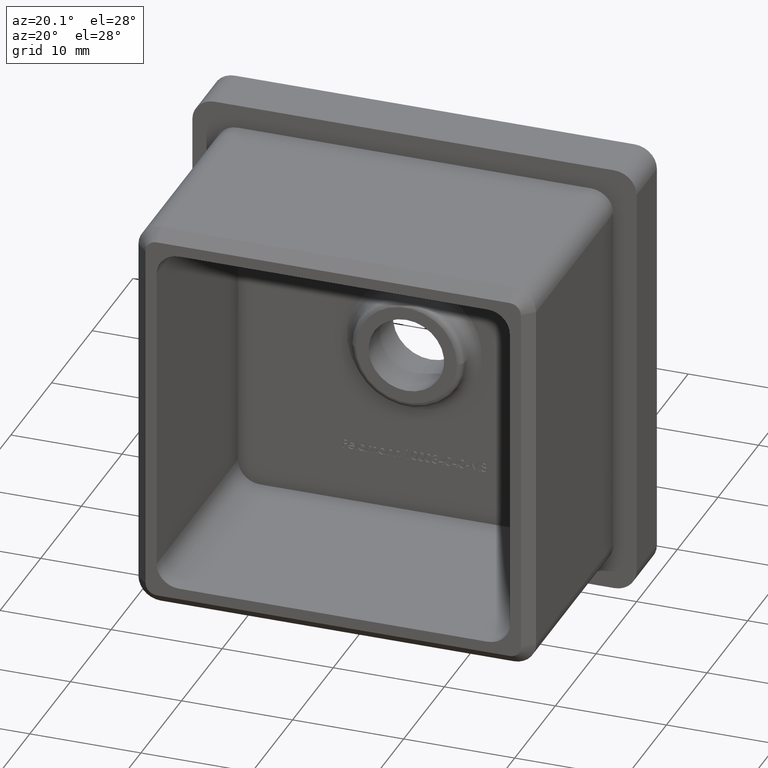
[diagram: clean part render]
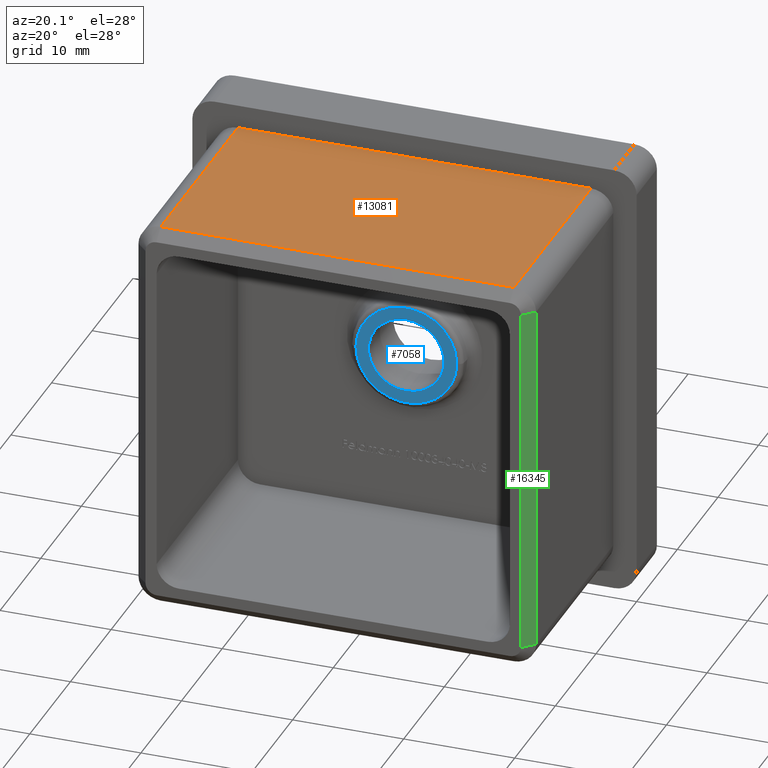
[diagram: same view with three faces highlighted in distinct colors, each labeled with its STEP entity id]
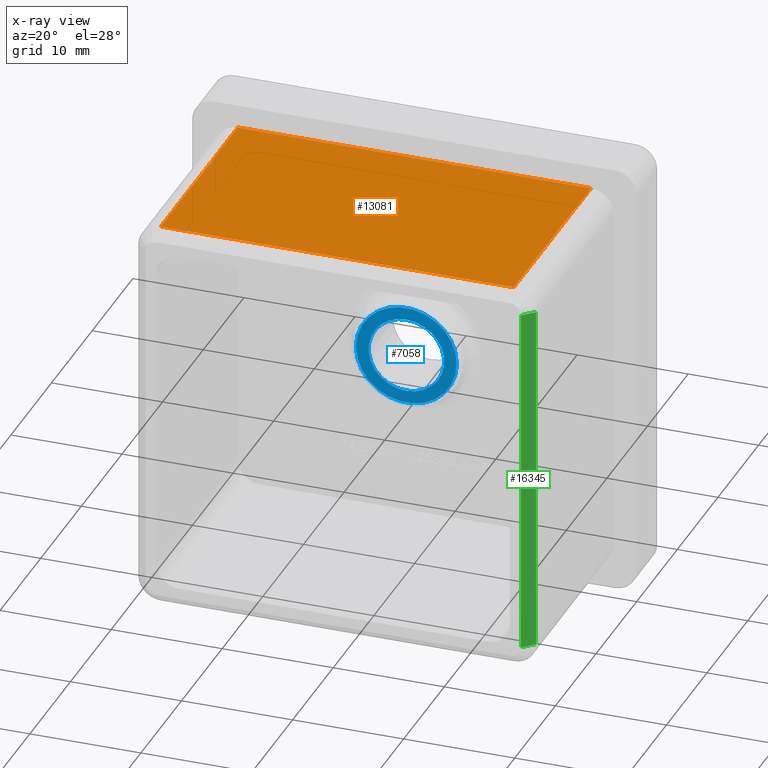
[diagram: x-ray of the same camera — body ghosted, the three highlighted faces saturated]
A machine part, auxiliary view with three faces highlighted in distinct colors.
The next image is the same camera in x-ray (body ghosted, the three faces saturated) — at least one of them is partly hidden behind the body in this view.
Their STEP definitions:

[orange] entity #13081 — the highlighted planar face has unit normal (0, 0, -1).
#421 = VERTEX_POINT ( 'NONE', #13328 ) ;
#1140 = DIRECTION ( 'NONE',  ( -1.000000000000000000, -0.0000000000000000000, -0.0000000000000000000 ) ) ;
#1721 = EDGE_LOOP ( 'NONE', ( #8275, #8311, #11586, #7834 ) ) ;
#3784 = EDGE_CURVE ( 'NONE', #8509, #421, #4536, .T. ) ;
#3984 = CARTESIAN_POINT ( 'NONE',  ( 15.90000000000000000, -20.00000000000000000, 17.89999999999999500 ) ) ;
#4536 = LINE ( 'NONE', #16659, #5942 ) ;
#4606 = LINE ( 'NONE', #3984, #9700 ) ;
#5942 = VECTOR ( 'NONE', #6327, 1000.000000000000000 ) ;
#6327 = DIRECTION ( 'NONE',  ( 1.000000000000000000, 0.0000000000000000000, 0.0000000000000000000 ) ) ;
#6505 = EDGE_CURVE ( 'NONE', #9741, #8509, #15438, .T. ) ;
#6672 = CARTESIAN_POINT ( 'NONE',  ( -15.89999999999999700, -20.00000000000000000, 17.89999999999999500 ) ) ;
#7417 = CARTESIAN_POINT ( 'NONE',  ( -15.89999999999999700, -18.99999999999999300, 17.89999999999999500 ) ) ;
#7833 = CARTESIAN_POINT ( 'NONE',  ( 15.90000000000000000, 0.0000000000000000000, 17.89999999999999500 ) ) ;
#7834 = ORIENTED_EDGE ( 'NONE', *, *, #13625, .T. ) ;
#8098 = DIRECTION ( 'NONE',  ( -0.0000000000000000000, -1.000000000000000000, -0.0000000000000000000 ) ) ;
#8275 = ORIENTED_EDGE ( 'NONE', *, *, #6505, .T. ) ;
#8311 = ORIENTED_EDGE ( 'NONE', *, *, #3784, .T. ) ;
#8405 = VERTEX_POINT ( 'NONE', #7833 ) ;
#8509 = VERTEX_POINT ( 'NONE', #7417 ) ;
#9011 = DIRECTION ( 'NONE',  ( 0.0000000000000000000, 0.0000000000000000000, -1.000000000000000000 ) ) ;
#9170 = DIRECTION ( 'NONE',  ( -1.000000000000000000, 0.0000000000000000000, -0.0000000000000000000 ) ) ;
#9176 = VECTOR ( 'NONE', #8098, 1000.000000000000000 ) ;
#9700 = VECTOR ( 'NONE', #15792, 1000.000000000000000 ) ;
#9741 = VERTEX_POINT ( 'NONE', #14292 ) ;
#9929 = LINE ( 'NONE', #16752, #11741 ) ;
#10668 = FACE_OUTER_BOUND ( 'NONE', #1721, .T. ) ;
#11586 = ORIENTED_EDGE ( 'NONE', *, *, #15369, .T. ) ;
#11741 = VECTOR ( 'NONE', #1140, 1000.000000000000000 ) ;
#13081 = ADVANCED_FACE ( 'NONE', ( #10668 ), #16905, .F. ) ;
#13328 = CARTESIAN_POINT ( 'NONE',  ( 15.90000000000000000, -18.99999999999999300, 17.89999999999999500 ) ) ;
#13625 = EDGE_CURVE ( 'NONE', #8405, #9741, #9929, .T. ) ;
#14292 = CARTESIAN_POINT ( 'NONE',  ( -15.89999999999999700, 0.0000000000000000000, 17.89999999999999500 ) ) ;
#15369 = EDGE_CURVE ( 'NONE', #421, #8405, #4606, .T. ) ;
#15438 = LINE ( 'NONE', #6672, #9176 ) ;
#15792 = DIRECTION ( 'NONE',  ( 0.0000000000000000000, 1.000000000000000000, 0.0000000000000000000 ) ) ;
#16272 = AXIS2_PLACEMENT_3D ( 'NONE', #16737, #9011, #9170 ) ;
#16659 = CARTESIAN_POINT ( 'NONE',  ( 15.90000000000000000, -18.99999999999999300, 17.89999999999999500 ) ) ;
#16737 = CARTESIAN_POINT ( 'NONE',  ( -17.89999999999999500, -20.00000000000000000, 17.89999999999999500 ) ) ;
#16752 = CARTESIAN_POINT ( 'NONE',  ( -17.89999999999999500, 0.0000000000000000000, 17.89999999999999500 ) ) ;
#16905 = PLANE ( 'NONE',  #16272 ) ;

[blue] entity #7058 — the highlighted planar face has unit normal (-0, 1, 0).
#1297 = VERTEX_POINT ( 'NONE', #12617 ) ;
#1451 = EDGE_CURVE ( 'NONE', #11780, #6679, #1863, .T. ) ;
#1718 = CARTESIAN_POINT ( 'NONE',  ( 2.449293598294707400E-016, -2.000000000000000400, -3.399999999999996800 ) ) ;
#1863 = CIRCLE ( 'NONE', #13485, 3.399999999999996800 ) ;
#1872 = DIRECTION ( 'NONE',  ( 1.224646799147353500E-016, -1.000000000000000000, 0.0000000000000000000 ) ) ;
#1880 = CARTESIAN_POINT ( 'NONE',  ( 6.613092715395704500E-016, -2.000000000000000400, 3.399999999999997200 ) ) ;
#2105 = CIRCLE ( 'NONE', #14612, 4.541834412991284400 ) ;
#2346 = DIRECTION ( 'NONE',  ( 1.224646799147353500E-016, -1.000000000000000000, 0.0000000000000000000 ) ) ;
#2366 = ORIENTED_EDGE ( 'NONE', *, *, #1451, .F. ) ;
#3193 = EDGE_CURVE ( 'NONE', #6679, #11780, #15896, .T. ) ;
#3400 = DIRECTION ( 'NONE',  ( -1.000000000000000000, -9.548583888345160900E-017, 0.0000000000000000000 ) ) ;
#3568 = ORIENTED_EDGE ( 'NONE', *, *, #15824, .T. ) ;
#4203 = DIRECTION ( 'NONE',  ( 0.0000000000000000000, 0.0000000000000000000, -1.000000000000000000 ) ) ;
#4355 = ORIENTED_EDGE ( 'NONE', *, *, #8185, .T. ) ;
#5346 = CIRCLE ( 'NONE', #8329, 4.541834412991284400 ) ;
#5414 = EDGE_LOOP ( 'NONE', ( #6396, #2366 ) ) ;
#5723 = DIRECTION ( 'NONE',  ( -1.000000000000000000, -9.548583888345160900E-017, 0.0000000000000000000 ) ) ;
#6396 = ORIENTED_EDGE ( 'NONE', *, *, #3193, .F. ) ;
#6657 = DIRECTION ( 'NONE',  ( -1.000000000000000000, -1.224646799147353500E-016, 0.0000000000000000000 ) ) ;
#6679 = VERTEX_POINT ( 'NONE', #1718 ) ;
#7058 = ADVANCED_FACE ( 'NONE', ( #14679, #13261 ), #11817, .F. ) ;
#7350 = CARTESIAN_POINT ( 'NONE',  ( 2.449293598294706900E-016, -2.000000000000000400, 0.0000000000000000000 ) ) ;
#8185 = EDGE_CURVE ( 'NONE', #1297, #15638, #5346, .T. ) ;
#8329 = AXIS2_PLACEMENT_3D ( 'NONE', #7350, #2346, #3400 ) ;
#9722 = EDGE_LOOP ( 'NONE', ( #3568, #4355 ) ) ;
#10525 = DIRECTION ( 'NONE',  ( 0.0000000000000000000, 0.0000000000000000000, -1.000000000000000000 ) ) ;
#10577 = CARTESIAN_POINT ( 'NONE',  ( 2.449293598294707400E-016, -2.000000000000000400, 0.0000000000000000000 ) ) ;
#11780 = VERTEX_POINT ( 'NONE', #1880 ) ;
#11817 = PLANE ( 'NONE',  #15715 ) ;
#11868 = DIRECTION ( 'NONE',  ( -0.0000000000000000000, -1.000000000000000000, -0.0000000000000000000 ) ) ;
#12617 = CARTESIAN_POINT ( 'NONE',  ( 4.541834412991284400, -2.000000000000000000, 5.867139638213479300E-016 ) ) ;
#13212 = CARTESIAN_POINT ( 'NONE',  ( 2.449293598294707400E-016, -2.000000000000000400, 0.0000000000000000000 ) ) ;
#13261 = FACE_OUTER_BOUND ( 'NONE', #9722, .T. ) ;
#13266 = CARTESIAN_POINT ( 'NONE',  ( 2.449293598294707400E-016, -2.000000000000000400, 0.0000000000000000000 ) ) ;
#13485 = AXIS2_PLACEMENT_3D ( 'NONE', #13212, #14670, #4203 ) ;
#13926 = AXIS2_PLACEMENT_3D ( 'NONE', #10577, #11868, #10525 ) ;
#14395 = DIRECTION ( 'NONE',  ( -1.224646799147353500E-016, 1.000000000000000000, 0.0000000000000000000 ) ) ;
#14612 = AXIS2_PLACEMENT_3D ( 'NONE', #14905, #1872, #5723 ) ;
#14670 = DIRECTION ( 'NONE',  ( -0.0000000000000000000, -1.000000000000000000, -0.0000000000000000000 ) ) ;
#14679 = FACE_BOUND ( 'NONE', #5414, .T. ) ;
#14905 = CARTESIAN_POINT ( 'NONE',  ( 2.449293598294706900E-016, -2.000000000000000400, 0.0000000000000000000 ) ) ;
#15638 = VERTEX_POINT ( 'NONE', #15663 ) ;
#15663 = CARTESIAN_POINT ( 'NONE',  ( -4.541834412991284400, -2.000000000000000900, 0.0000000000000000000 ) ) ;
#15715 = AXIS2_PLACEMENT_3D ( 'NONE', #13266, #14395, #6657 ) ;
#15824 = EDGE_CURVE ( 'NONE', #15638, #1297, #2105, .T. ) ;
#15896 = CIRCLE ( 'NONE', #13926, 3.399999999999996800 ) ;

[green] entity #16345 — the highlighted planar face has unit normal (0.7071, -0.7071, 0).
#106 = DIRECTION ( 'NONE',  ( 0.7071067811865451300, 0.7071067811865500200, 0.0000000000000000000 ) ) ;
#429 = CARTESIAN_POINT ( 'NONE',  ( 16.89999999999999500, -20.00000000000000000, 0.0000000000000000000 ) ) ;
#1180 = VECTOR ( 'NONE', #11396, 1000.000000000000000 ) ;
#1675 = VECTOR ( 'NONE', #106, 1000.000000000000100 ) ;
#1759 = ORIENTED_EDGE ( 'NONE', *, *, #9609, .T. ) ;
#1960 = CARTESIAN_POINT ( 'NONE',  ( 17.89999999999999900, -18.99999999999999300, 15.89999999999999700 ) ) ;
#2038 = CARTESIAN_POINT ( 'NONE',  ( 16.89999999999999500, -20.00000000000000000, 15.89999999999999700 ) ) ;
#2041 = CARTESIAN_POINT ( 'NONE',  ( 17.89999999999999500, -18.99999999999999300, 15.89999999999999700 ) ) ;
#2799 = DIRECTION ( 'NONE',  ( 0.7071067811865500200, -0.7071067811865451300, 0.0000000000000000000 ) ) ;
#3963 = VERTEX_POINT ( 'NONE', #6032 ) ;
#4100 = LINE ( 'NONE', #1960, #4728 ) ;
#4246 = PLANE ( 'NONE',  #9896 ) ;
#4365 = FACE_OUTER_BOUND ( 'NONE', #10565, .T. ) ;
#4630 = DIRECTION ( 'NONE',  ( -0.7071067811865451300, -0.7071067811865500200, 0.0000000000000000000 ) ) ;
#4728 = VECTOR ( 'NONE', #4630, 1000.000000000000100 ) ;
#5444 = VERTEX_POINT ( 'NONE', #15559 ) ;
#6032 = CARTESIAN_POINT ( 'NONE',  ( 16.89999999999999500, -20.00000000000000000, -15.90000000000000000 ) ) ;
#7028 = VECTOR ( 'NONE', #10340, 1000.000000000000000 ) ;
#8128 = DIRECTION ( 'NONE',  ( 0.0000000000000000000, 0.0000000000000000000, -1.000000000000000000 ) ) ;
#8392 = LINE ( 'NONE', #2038, #1180 ) ;
#9609 = EDGE_CURVE ( 'NONE', #15153, #11261, #4100, .T. ) ;
#9896 = AXIS2_PLACEMENT_3D ( 'NONE', #429, #2799, #8128 ) ;
#10091 = LINE ( 'NONE', #10626, #1675 ) ;
#10332 = EDGE_CURVE ( 'NONE', #3963, #11261, #8392, .T. ) ;
#10340 = DIRECTION ( 'NONE',  ( 0.0000000000000000000, 0.0000000000000000000, -1.000000000000000000 ) ) ;
#10565 = EDGE_LOOP ( 'NONE', ( #13345, #12564, #1759, #16434 ) ) ;
#10626 = CARTESIAN_POINT ( 'NONE',  ( 16.89999999999999500, -20.00000000000000000, -15.90000000000000000 ) ) ;
#10887 = LINE ( 'NONE', #11577, #7028 ) ;
#11261 = VERTEX_POINT ( 'NONE', #15685 ) ;
#11396 = DIRECTION ( 'NONE',  ( 0.0000000000000000000, 0.0000000000000000000, 1.000000000000000000 ) ) ;
#11577 = CARTESIAN_POINT ( 'NONE',  ( 17.89999999999999500, -18.99999999999999300, -15.90000000000000000 ) ) ;
#12564 = ORIENTED_EDGE ( 'NONE', *, *, #16024, .F. ) ;
#13345 = ORIENTED_EDGE ( 'NONE', *, *, #15776, .T. ) ;
#15153 = VERTEX_POINT ( 'NONE', #2041 ) ;
#15559 = CARTESIAN_POINT ( 'NONE',  ( 17.89999999999999500, -18.99999999999999300, -15.90000000000000000 ) ) ;
#15685 = CARTESIAN_POINT ( 'NONE',  ( 16.89999999999999900, -20.00000000000000000, 15.89999999999999700 ) ) ;
#15776 = EDGE_CURVE ( 'NONE', #3963, #5444, #10091, .T. ) ;
#16024 = EDGE_CURVE ( 'NONE', #15153, #5444, #10887, .T. ) ;
#16345 = ADVANCED_FACE ( 'NONE', ( #4365 ), #4246, .T. ) ;
#16434 = ORIENTED_EDGE ( 'NONE', *, *, #10332, .F. ) ;